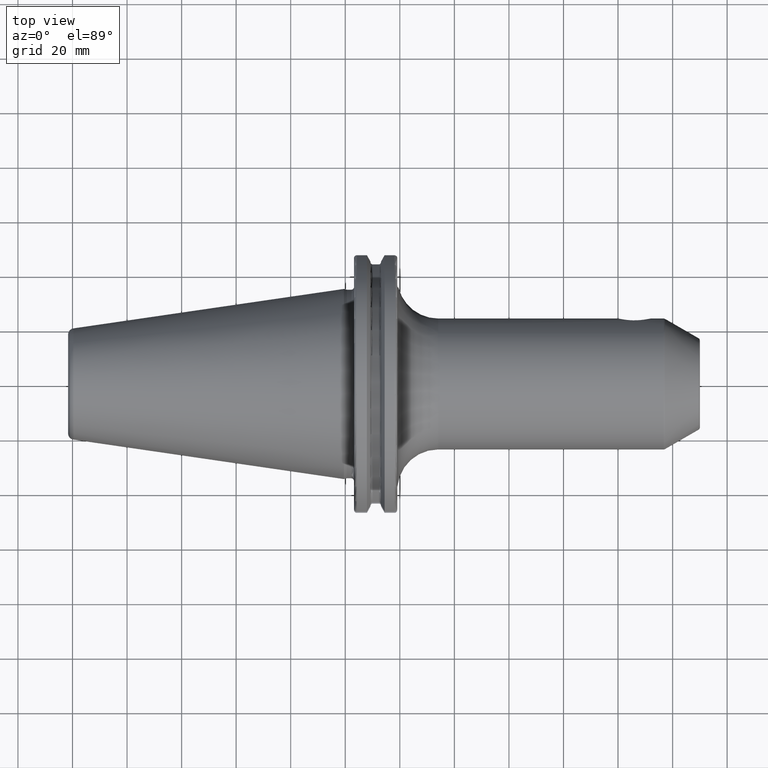
[diagram: clean part render]
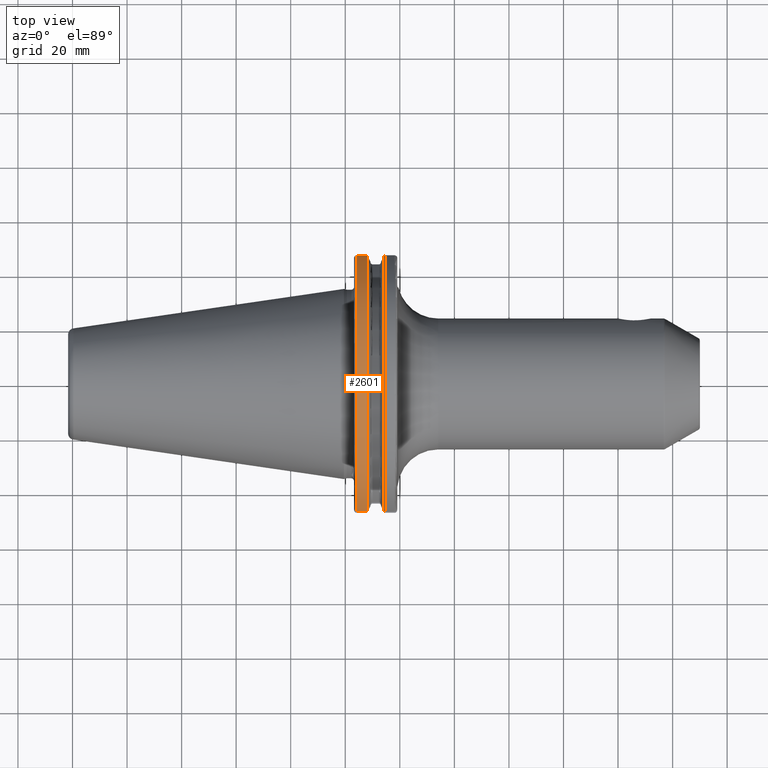
[diagram: same view with one face highlighted and labeled with its STEP entity id]
A machine part, top view. The second image highlights one B-rep face of the part: STEP entity #2601.
In plain terms, the highlighted cylindrical surface (partial cylindrical patch) has radius 48.7375 mm, axis along (1, 0, 0).
Its self-contained STEP definition (entity closure, byte-faithful):
#754=DIRECTION('',(1.E0,0.E0,0.E0));
#755=VECTOR('',#754,3.734621614173E0);
#756=CARTESIAN_POINT('',(4.2E0,4.699929686974E1,1.29E1));
#757=LINE('',#756,#755);
#758=CARTESIAN_POINT('',(7.934621614173E0,0.E0,0.E0));
#759=DIRECTION('',(1.E0,0.E0,0.E0));
#760=DIRECTION('',(0.E0,9.643354064066E-1,2.646832521159E-1));
#761=AXIS2_PLACEMENT_3D('',#758,#759,#760);
#763=DIRECTION('',(1.E0,0.E0,0.E0));
#764=VECTOR('',#763,3.734621614173E0);
#765=CARTESIAN_POINT('',(4.2E0,-4.699929686974E1,1.29E1));
#766=LINE('',#765,#764);
#785=CARTESIAN_POINT('',(7.934621614173E0,4.699929686974E1,1.29E1));
#797=CARTESIAN_POINT('',(7.934621614173E0,-4.699929686974E1,1.29E1));
#810=CARTESIAN_POINT('',(4.2E0,0.E0,0.E0));
#811=DIRECTION('',(1.E0,0.E0,0.E0));
#812=DIRECTION('',(0.E0,9.643354064066E-1,2.646832521159E-1));
#813=AXIS2_PLACEMENT_3D('',#810,#811,#812);
#1560=VERTEX_POINT('',#785);
#1561=VERTEX_POINT('',#797);
#1572=CARTESIAN_POINT('',(4.2E0,4.699929686974E1,1.29E1));
#1573=VERTEX_POINT('',#1572);
#1576=CARTESIAN_POINT('',(4.2E0,-4.699929686974E1,1.29E1));
#1577=VERTEX_POINT('',#1576);
#2588=CARTESIAN_POINT('',(-1.076325E2,0.E0,0.E0));
#2589=DIRECTION('',(1.E0,0.E0,0.E0));
#2590=DIRECTION('',(0.E0,-1.E0,0.E0));
#2591=AXIS2_PLACEMENT_3D('',#2588,#2589,#2590);
#2592=CYLINDRICAL_SURFACE('',#2591,4.87375E1);
#2593=ORIENTED_EDGE('',*,*,#2059,.T.);
#2595=ORIENTED_EDGE('',*,*,#2594,.T.);
#2596=ORIENTED_EDGE('',*,*,#2093,.F.);
#2598=ORIENTED_EDGE('',*,*,#2597,.F.);
#2599=EDGE_LOOP('',(#2593,#2595,#2596,#2598));
#2600=FACE_OUTER_BOUND('',#2599,.F.);
#2601=ADVANCED_FACE('',(#2600),#2592,.T.);
#762=CIRCLE('',#761,4.87375E1);
#814=CIRCLE('',#813,4.87375E1);
#2059=EDGE_CURVE('',#1573,#1560,#757,.T.);
#2093=EDGE_CURVE('',#1577,#1561,#766,.T.);
#2594=EDGE_CURVE('',#1560,#1561,#762,.T.);
#2597=EDGE_CURVE('',#1573,#1577,#814,.T.);